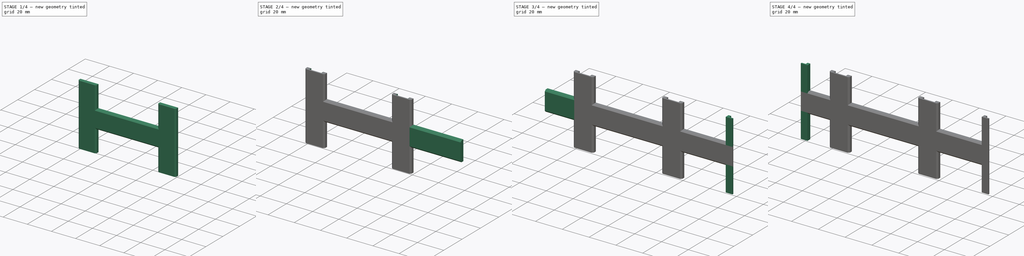
[diagram: build sequence overview — one tinted view per stage of 4, left to right]
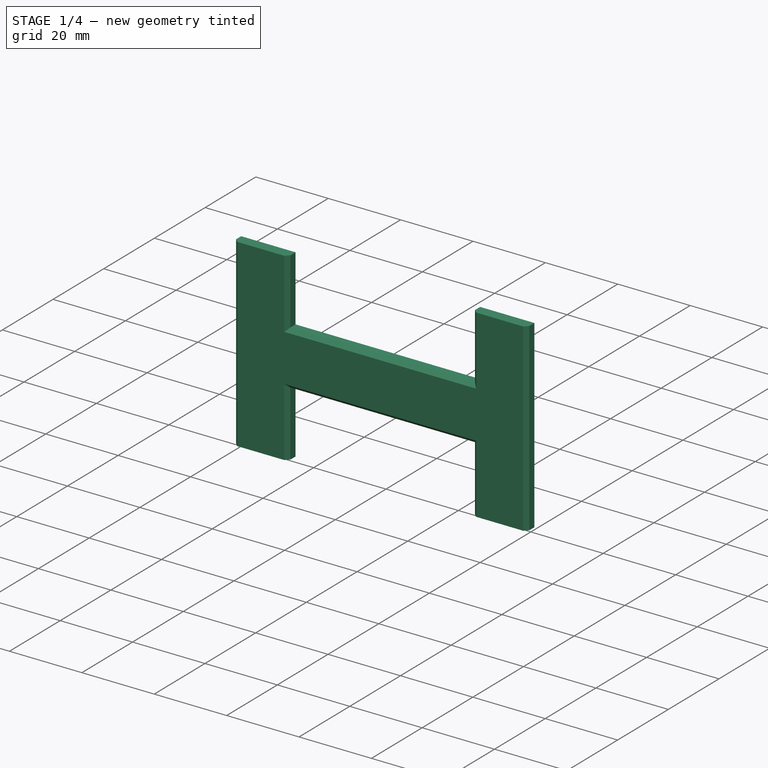
[diagram: stage 1 of 4 — iso view after this stage's code; geometry added in this stage tinted green]
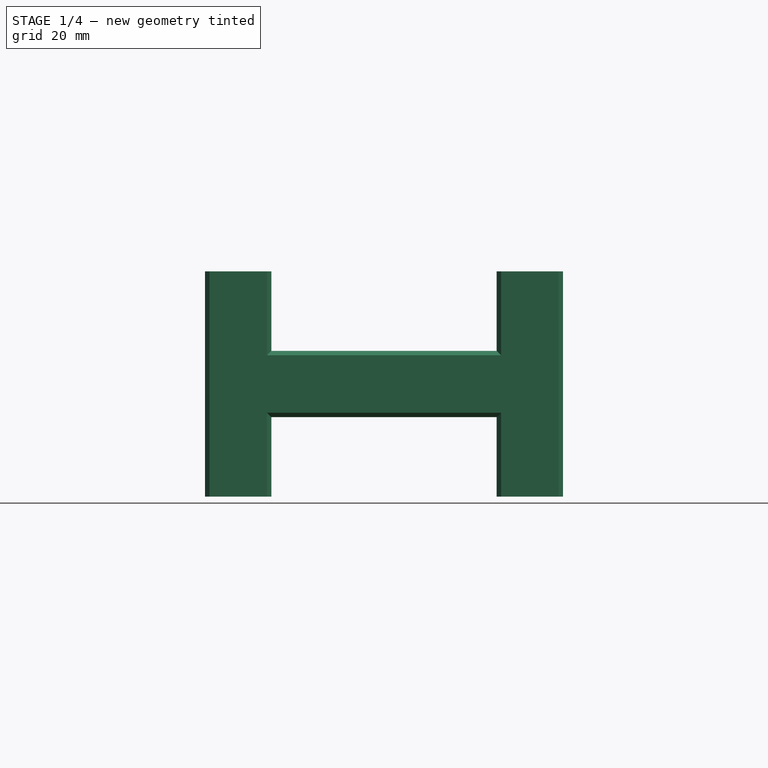
[diagram: stage 1 of 4 — front view after this stage's code; geometry added in this stage tinted green]
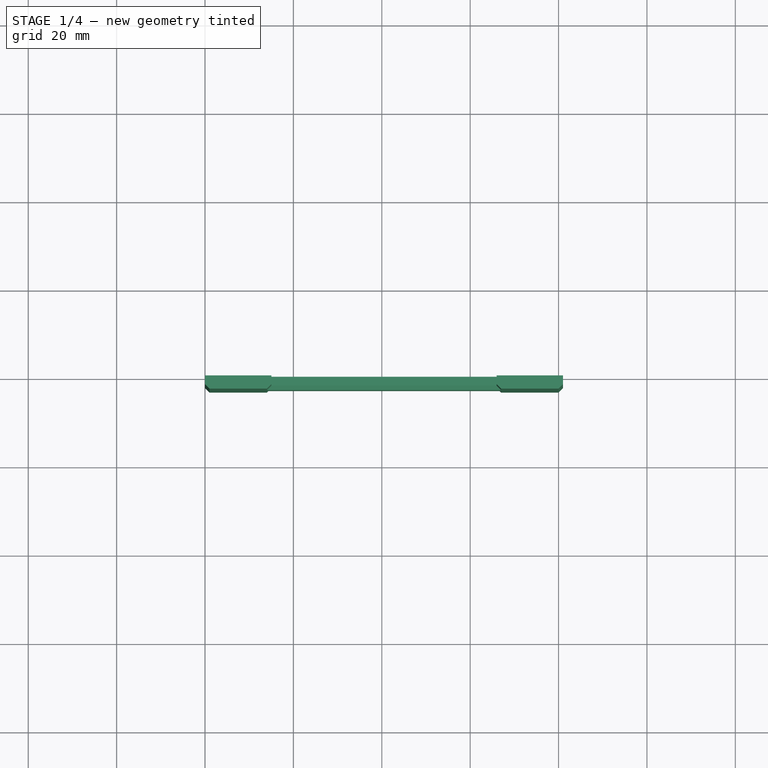
[diagram: stage 1 of 4 — top view after this stage's code; geometry added in this stage tinted green]
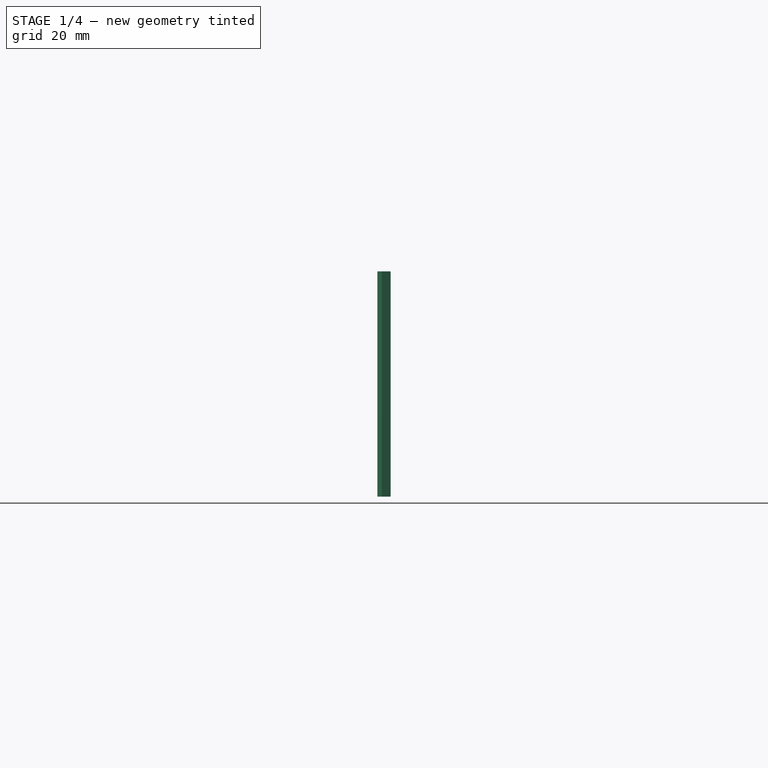
[diagram: stage 1 of 4 — right view after this stage's code; geometry added in this stage tinted green]
FCSTD DOCUMENT  (FreeCAD 0.20R29603 (Git))
Label: neopixelbracket_I
License: All rights reserved
LicenseURL: http://en.wikipedia.org/wiki/All_rights_reserved
objects: Sketcher::SketchObject×12, PartDesign::Pad×7, PartDesign::Pocket×5, PartDesign::Body×1
note: 37 computed .brp shape members not serialized (recipe doc carries the construction recipe); baked Part::Feature solids carry a one-line shape summary decoded from their .brp

FEATURE [Sketcher::SketchObject] Sketch
  FullyConstrained = true
  MapMode = 5
  Support = -> [XY_Plane]
  sketch-geometry (6):
    g0: LineSegment StartX=1 StartY=-3 StartZ=0 EndX=0 EndY=-2 EndZ=0
    g1: LineSegment StartX=0 StartY=-2 StartZ=0 EndX=0 EndY=0 EndZ=0
    g2: LineSegment StartX=0 StartY=0 StartZ=0 EndX=15 EndY=0 EndZ=0
    g3: LineSegment StartX=15 StartY=0 StartZ=0 EndX=15 EndY=-2 EndZ=0
    g4: LineSegment StartX=15 StartY=-2 StartZ=0 EndX=14 EndY=-3 EndZ=0
    g5: LineSegment StartX=14 StartY=-3 StartZ=0 EndX=1 EndY=-3 EndZ=0
  constraints (17):
    c: Coincident(g0,g1)
    c: Vertical(g1)
    c: Coincident(g1,g2)
    c: Horizontal(g2)
    c: Coincident(g2,g3)
    c: Vertical(g3)
    c: Coincident(g3,g4)
    c: Coincident(g4,g5)
    c: Coincident(g5,g0)
    c: Horizontal(g5)
    c: DistanceY(g0,g1) = 2
    c: DistanceY(g3,g3) = 2
    c: DistanceY(g4,g3) = 1
    c: DistanceX(g4,g3) = 1
    c: DistanceX(g0,g0) = 1
    c: DistanceX(g1,g2) = 15
    c: Coincident(g1,g-1)
FEATURE [PartDesign::Pad] Pad
  Direction = (0,0,1)
  Length = 51
  Length2 = 10
  Profile = -> Sketch
  ReferenceAxis = -> Sketch [N_Axis]
  Type = 0
FEATURE [Sketcher::SketchObject] Sketch001
  AttachmentOffset = pos=(0,0,-1) rot=(0,0,1;0rad)
  ExternalGeometry = -> [Pad]
  FullyConstrained = true
  MapMode = 5
  Placement = pos=(14,0,0) rot=(0.57735,0.57735,0.57735;2.0944rad)
  Support = -> [Pad]
  sketch-geometry (6):
    g0: LineSegment StartX=0 StartY=33 StartZ=0 EndX=0 EndY=18 EndZ=0
    g1: LineSegment StartX=0 StartY=18 StartZ=0 EndX=-2 EndY=18 EndZ=0
    g2: LineSegment StartX=-2 StartY=18 StartZ=0 EndX=-3 EndY=19 EndZ=0
    g3: LineSegment StartX=-3 StartY=19 StartZ=0 EndX=-3 EndY=32 EndZ=0
    g4: LineSegment StartX=-3 StartY=32 StartZ=0 EndX=-2 EndY=33 EndZ=0
    g5: LineSegment StartX=-2 StartY=33 StartZ=0 EndX=0 EndY=33 EndZ=0
  constraints (18):
    c: Vertical(g0)
    c: Coincident(g0,g1)
    c: Coincident(g1,g2)
    c: Coincident(g2,g3)
    c: Vertical(g3)
    c: Coincident(g3,g4)
    c: Coincident(g4,g5)
    c: Coincident(g5,g0)
    c: Horizontal(g5)
    c: Horizontal(g1)
    c: DistanceX(g3,g4) = 1
    c: DistanceY(g3,g4) = 1
    c: DistanceX(g4,g0) = 2
    c: DistanceY(g0,g0) = 15
    c: DistanceY(g1,g2) = 1
    c: DistanceX(g1,g0) = 2
    c: DistanceX(g-3,g0) = 0
    c: DistanceY(g0,g-3) = 18
FEATURE [PartDesign::Pad] Pad001
  BaseFeature = -> Pad
  Direction = (1,0,0)
  Length = 53
  Length2 = 10
  Profile = -> Sketch001
  ReferenceAxis = -> Sketch001 [N_Axis]
  Type = 0
FEATURE [Sketcher::SketchObject] Sketch002
  AttachmentOffset = pos=(0,0,-33) rot=(0,0,1;0rad)
  ExternalGeometry = -> [Pad001]
  FullyConstrained = true
  MapMode = 5
  Support = -> [Pad001]
  sketch-geometry (6):
    g0: LineSegment StartX=66 StartY=0 StartZ=0 EndX=81 EndY=0 EndZ=0
    g1: LineSegment StartX=81 StartY=0 StartZ=0 EndX=81 EndY=-2 EndZ=0
    g2: LineSegment StartX=81 StartY=-2 StartZ=0 EndX=80 EndY=-3 EndZ=0
    g3: LineSegment StartX=80 StartY=-3 StartZ=0 EndX=67 EndY=-3 EndZ=0
    g4: LineSegment StartX=67 StartY=-3 StartZ=0 EndX=66 EndY=-2 EndZ=0
    g5: LineSegment StartX=66 StartY=-2 StartZ=0 EndX=66 EndY=0 EndZ=0
  constraints (18):
    c: Horizontal(g0)
    c: Coincident(g0,g1)
    c: Vertical(g1)
    c: Coincident(g1,g2)
    c: Coincident(g2,g3)
    c: Horizontal(g3)
    c: Coincident(g3,g4)
    c: Coincident(g5,g4)
    c: Coincident(g5,g0)
    c: Vertical(g5)
    c: DistanceY(g4,g0) = 2
    c: DistanceY(g3,g4) = 1
    c: DistanceX(g4,g3) = 1
    c: DistanceY(g1,g0) = 2
    c: DistanceX(g2,g1) = 1
    c: DistanceX(g0,g0) = 15
    c: DistanceY(g-3,g0) = 0
    c: DistanceX(g0,g-3) = 1
FEATURE [PartDesign::Pad] Pad002
  BaseFeature = -> Pad001
  Direction = (0,0,1)
  Length = 51
  Length2 = 10
  Profile = -> Sketch002
  ReferenceAxis = -> Sketch002 [N_Axis]
  Type = 0
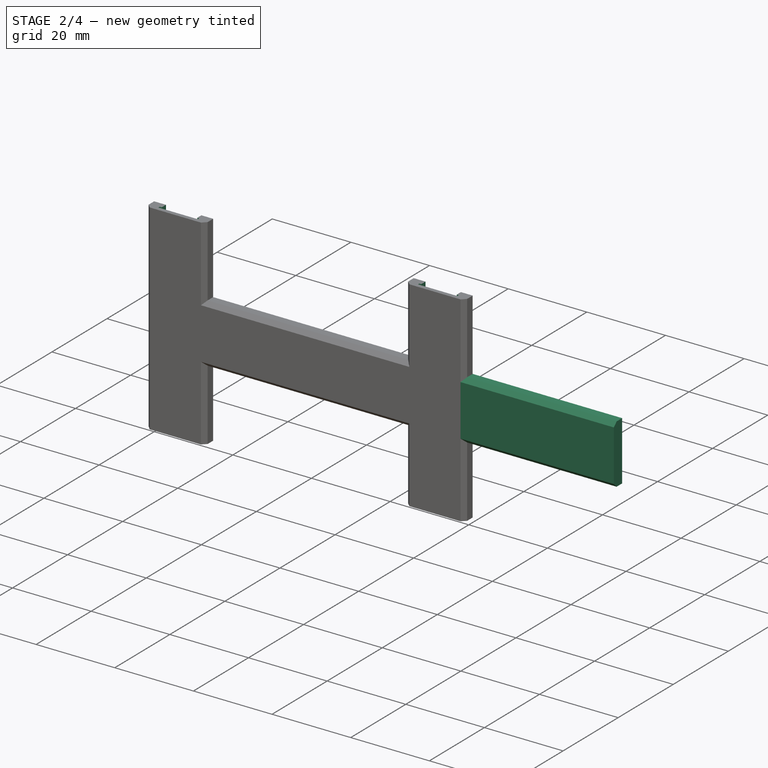
[diagram: stage 2 of 4 — iso view after this stage's code; geometry added in this stage tinted green]
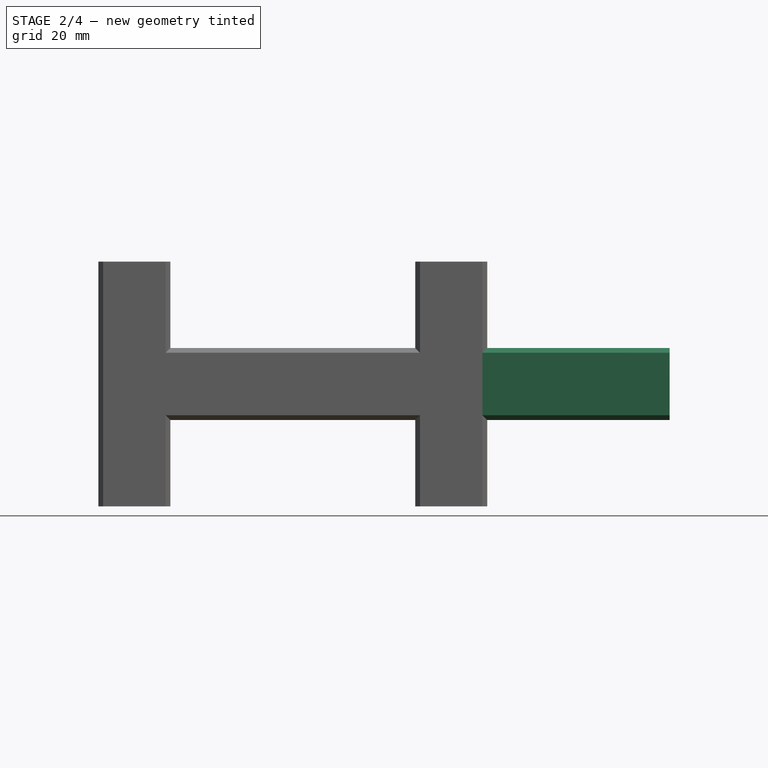
[diagram: stage 2 of 4 — front view after this stage's code; geometry added in this stage tinted green]
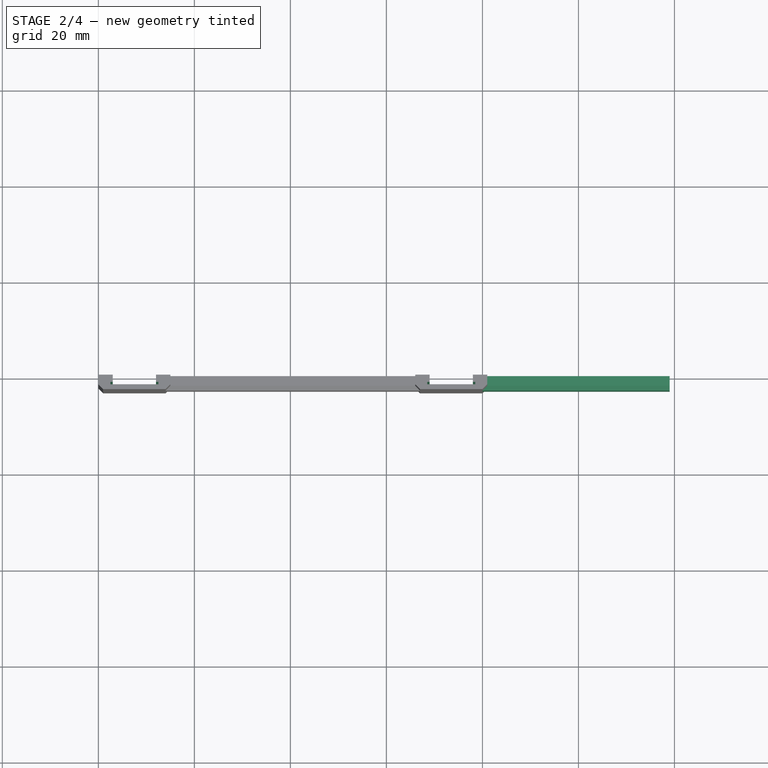
[diagram: stage 2 of 4 — top view after this stage's code; geometry added in this stage tinted green]
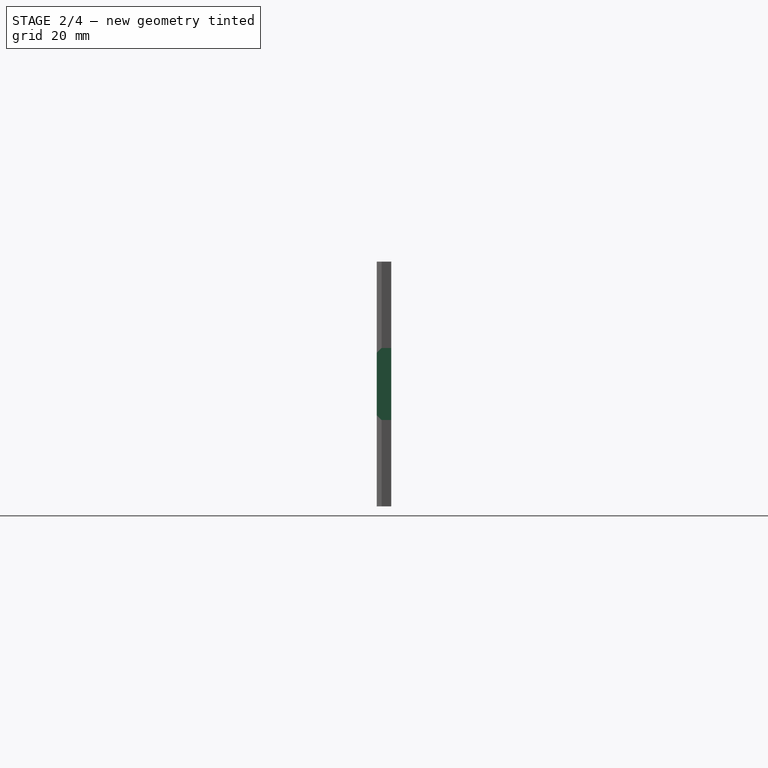
[diagram: stage 2 of 4 — right view after this stage's code; geometry added in this stage tinted green]
FEATURE [Sketcher::SketchObject] Sketch003
  FullyConstrained = true
  MapMode = 5
  Placement = pos=(0,0,51) rot=(0,0,1;0rad)
  Support = -> [Pad002]
  sketch-geometry (8):
    g0: LineSegment StartX=3 StartY=0 StartZ=0 EndX=3 EndY=-1.5 EndZ=0
    g1: LineSegment StartX=3 StartY=-1.5 StartZ=0 EndX=2.5 EndY=-1.5 EndZ=0
    g2: LineSegment StartX=2.5 StartY=-1.5 StartZ=0 EndX=2.5 EndY=-2 EndZ=0
    g3: LineSegment StartX=2.5 StartY=-2 StartZ=0 EndX=12.5 EndY=-2 EndZ=0
    g4: LineSegment StartX=12.5 StartY=-2 StartZ=0 EndX=12.5 EndY=-1.5 EndZ=0
    g5: LineSegment StartX=12.5 StartY=-1.5 StartZ=0 EndX=12 EndY=-1.5 EndZ=0
    g6: LineSegment StartX=12 StartY=-1.5 StartZ=0 EndX=12 EndY=0 EndZ=0
    g7: LineSegment StartX=12 StartY=0 StartZ=0 EndX=3 EndY=0 EndZ=0
  constraints (24):
    c: Vertical(g0)
    c: Coincident(g0,g1)
    c: Horizontal(g1)
    c: Coincident(g1,g2)
    c: Coincident(g2,g3)
    c: Horizontal(g3)
    c: Coincident(g3,g4)
    c: Vertical(g4)
    c: Coincident(g4,g5)
    c: Coincident(g5,g6)
    c: Coincident(g6,g7)
    c: Coincident(g7,g0)
    c: Horizontal(g7)
    c: Horizontal(g5)
    c: Vertical(g2)
    c: DistanceX(g1,g0) = 0.5
    c: DistanceY(g2,g2) = 0.5
    c: Vertical(g6)
    c: DistanceX(g5,g5) = 0.5
    c: DistanceX(g3,g3) = 10
    c: DistanceY(g0,g0) = 1.5
    c: DistanceY(g4,g4) = 0.5
    c: DistanceY(g0,g-1) = 0
    c: DistanceX(g-1,g0) = 3
FEATURE [PartDesign::Pocket] Pocket
  BaseFeature = -> Pad002
  Direction = (0,0,-1)
  Length = 51
  Length2 = 5
  Profile = -> Sketch003
  ReferenceAxis = -> Sketch003 [N_Axis]
  Type = 0
FEATURE [Sketcher::SketchObject] Sketch004
  ExternalGeometry = -> [Pocket]
  FullyConstrained = true
  MapMode = 5
  Placement = pos=(0,0,51) rot=(0,0,1;0rad)
  Support = -> [Pocket]
  sketch-geometry (8):
    g0: LineSegment StartX=78 StartY=0 StartZ=0 EndX=69 EndY=0 EndZ=0
    g1: LineSegment StartX=69 StartY=0 StartZ=0 EndX=69 EndY=-1.5 EndZ=0
    g2: LineSegment StartX=69 StartY=-1.5 StartZ=0 EndX=68.5 EndY=-1.5 EndZ=0
    g3: LineSegment StartX=68.5 StartY=-1.5 StartZ=0 EndX=68.5 EndY=-2 EndZ=0
    g4: LineSegment StartX=68.5 StartY=-2 StartZ=0 EndX=78.5 EndY=-2 EndZ=0
    g5: LineSegment StartX=78.5 StartY=-2 StartZ=0 EndX=78.5 EndY=-1.5 EndZ=0
    g6: LineSegment StartX=78.5 StartY=-1.5 StartZ=0 EndX=78 EndY=-1.5 EndZ=0
    g7: LineSegment StartX=78 StartY=-1.5 StartZ=0 EndX=78 EndY=0 EndZ=0
  constraints (24):
    c: Horizontal(g0)
    c: Coincident(g0,g1)
    c: Coincident(g1,g2)
    c: Horizontal(g2)
    c: Coincident(g2,g3)
    c: Coincident(g3,g4)
    c: Horizontal(g4)
    c: Coincident(g4,g5)
    c: Coincident(g5,g6)
    c: Coincident(g6,g7)
    c: Coincident(g7,g0)
    c: Vertical(g7)
    c: Vertical(g1)
    c: Horizontal(g6)
    c: Vertical(g5)
    c: Vertical(g3)
    c: DistanceX(g4,g4) = 10
    c: DistanceX(g2,g2) = 0.5
    c: DistanceX(g6,g6) = 0.5
    c: DistanceY(g3,g3) = 0.5
    c: DistanceY(g1,g1) = 1.5
    c: DistanceY(g7,g7) = 1.5
    c: DistanceY(g-3,g0) = 0
    c: DistanceX(g0,g-3) = 3
FEATURE [PartDesign::Pocket] Pocket001
  BaseFeature = -> Pocket
  Direction = (0,0,-1)
  Length = 51
  Length2 = 5
  Profile = -> Sketch004
  ReferenceAxis = -> Sketch004 [N_Axis]
  Type = 0
FEATURE [Sketcher::SketchObject] Sketch006
  AttachmentOffset = pos=(0,0,-1) rot=(0,0,1;0rad)
  FullyConstrained = true
  MapMode = 5
  Placement = pos=(80,0,0) rot=(0.57735,0.57735,0.57735;2.0944rad)
  sketch-geometry (6):
    g0: LineSegment StartX=0 StartY=33 StartZ=0 EndX=-2 EndY=33 EndZ=0
    g1: LineSegment StartX=-2 StartY=33 StartZ=0 EndX=-3 EndY=32 EndZ=0
    g2: LineSegment StartX=-3 StartY=32 StartZ=0 EndX=-3 EndY=19 EndZ=0
    g3: LineSegment StartX=-3 StartY=19 StartZ=0 EndX=-2 EndY=18 EndZ=0
    g4: LineSegment StartX=-2 StartY=18 StartZ=0 EndX=0 EndY=18 EndZ=0
    g5: LineSegment StartX=0 StartY=18 StartZ=0 EndX=0 EndY=33 EndZ=0
  constraints (18):
    c: Horizontal(g0)
    c: Coincident(g0,g1)
    c: Coincident(g1,g2)
    c: Vertical(g2)
    c: Coincident(g2,g3)
    c: Coincident(g3,g4)
    c: Horizontal(g4)
    c: Coincident(g4,g5)
    c: Coincident(g5,g0)
    c: Vertical(g5)
    c: DistanceY(g5,g5) = 15
    c: DistanceX(g0,g0) = 2
    c: DistanceX(g1,g0) = 1
    c: DistanceY(g1,g0) = 1
    c: DistanceY(g3,g2) = 1
    c: DistanceX(g4,g4) = 2
    c: DistanceX(g4,g-1) = 0
    c: DistanceY(g-1,g4) = 18
FEATURE [PartDesign::Pad] Pad003
  BaseFeature = -> Pocket001
  Direction = (1,0,0)
  Length = 39
  Length2 = 10
  Profile = -> Sketch006
  ReferenceAxis = -> Sketch006 [N_Axis]
  Type = 0
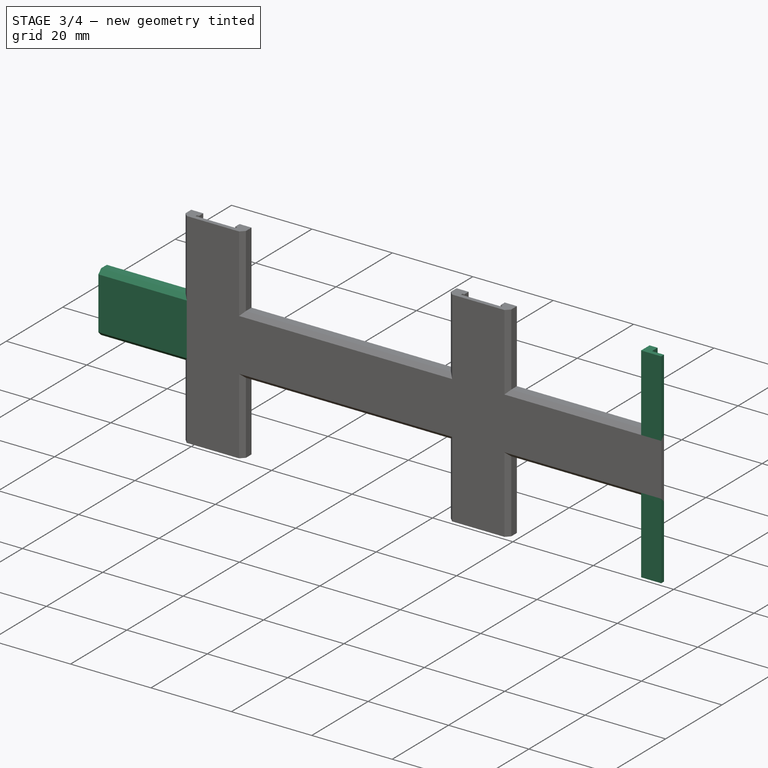
[diagram: stage 3 of 4 — iso view after this stage's code; geometry added in this stage tinted green]
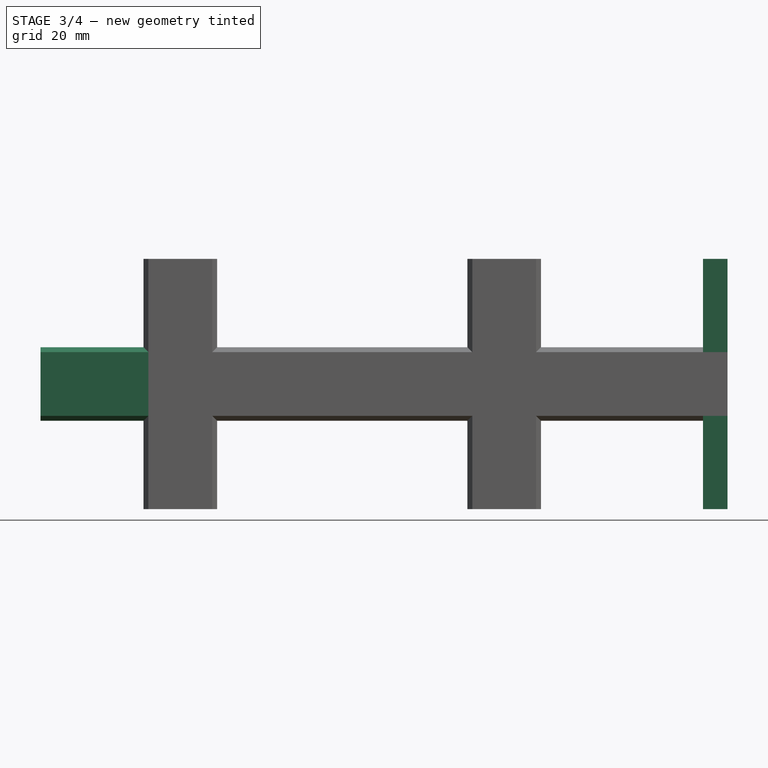
[diagram: stage 3 of 4 — front view after this stage's code; geometry added in this stage tinted green]
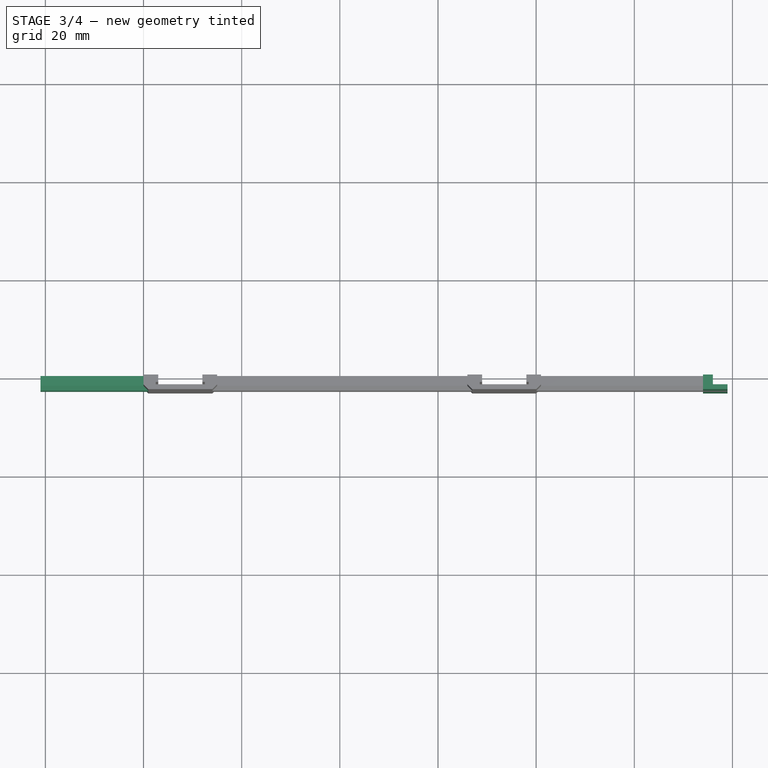
[diagram: stage 3 of 4 — top view after this stage's code; geometry added in this stage tinted green]
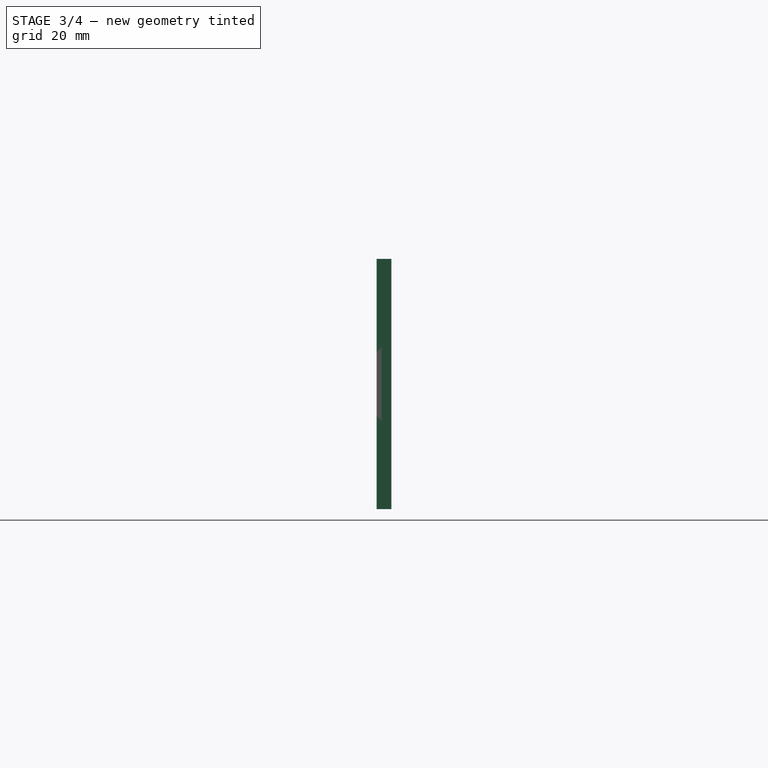
[diagram: stage 3 of 4 — right view after this stage's code; geometry added in this stage tinted green]
FEATURE [Sketcher::SketchObject] Sketch007
  AttachmentOffset = pos=(0,0,-1) rot=(0,0,1;0rad)
  FullyConstrained = true
  MapMode = 5
  Placement = pos=(1,0,0) rot=(0.57735,-0.57735,-0.57735;2.0944rad)
  Support = -> [Pad003]
  sketch-geometry (6):
    g0: LineSegment StartX=0 StartY=33 StartZ=0 EndX=2 EndY=33 EndZ=0
    g1: LineSegment StartX=2 StartY=33 StartZ=0 EndX=3 EndY=32 EndZ=0
    g2: LineSegment StartX=3 StartY=32 StartZ=0 EndX=3 EndY=19 EndZ=0
    g3: LineSegment StartX=3 StartY=19 StartZ=0 EndX=2 EndY=18 EndZ=0
    g4: LineSegment StartX=2 StartY=18 StartZ=0 EndX=0 EndY=18 EndZ=0
    g5: LineSegment StartX=0 StartY=18 StartZ=0 EndX=0 EndY=33 EndZ=0
  constraints (18):
    c: Horizontal(g0)
    c: Coincident(g0,g1)
    c: Coincident(g1,g2)
    c: Vertical(g2)
    c: Coincident(g2,g3)
    c: Coincident(g3,g4)
    c: Horizontal(g4)
    c: Coincident(g4,g5)
    c: Coincident(g5,g0)
    c: Vertical(g5)
    c: DistanceY(g5,g5) = 15
    c: DistanceX(g0,g0) = 2
    c: DistanceX(g4,g4) = 2
    c: DistanceX(g3,g2) = 1
    c: DistanceY(g1,g0) = 1
    c: DistanceY(g3,g2) = 1
    c: DistanceX(g4,g-1) = 0
    c: DistanceY(g-1,g4) = 18
FEATURE [PartDesign::Pad] Pad004
  BaseFeature = -> Pad003
  Direction = (-1,0,0)
  Length = 22
  Length2 = 10
  Profile = -> Sketch007
  ReferenceAxis = -> Sketch007 [N_Axis]
  Type = 0
FEATURE [Sketcher::SketchObject] Sketch008
  ExternalGeometry = -> [Pad004]
  FullyConstrained = true
  MapMode = 5
  Placement = pos=(119,0,0) rot=(0.57735,0.57735,0.57735;2.0944rad)
  Support = -> [Pad004]
  sketch-geometry (8):
    g0: LineSegment StartX=0 StartY=30 StartZ=0 EndX=-1.5 EndY=30 EndZ=0
    g1: LineSegment StartX=-1.5 StartY=30 StartZ=0 EndX=-1.5 EndY=30.5 EndZ=0
    g2: LineSegment StartX=-1.5 StartY=30.5 StartZ=0 EndX=-2 EndY=30.5 EndZ=0
    g3: LineSegment StartX=-2 StartY=30.5 StartZ=0 EndX=-2 EndY=20.5 EndZ=0
    g4: LineSegment StartX=-2 StartY=20.5 StartZ=0 EndX=-1.5 EndY=20.5 EndZ=0
    g5: LineSegment StartX=-1.5 StartY=20.5 StartZ=0 EndX=-1.5 EndY=21 EndZ=0
    g6: LineSegment StartX=-1.5 StartY=21 StartZ=0 EndX=0 EndY=21 EndZ=0
    g7: LineSegment StartX=0 StartY=21 StartZ=0 EndX=0 EndY=30 EndZ=0
  constraints (24):
    c: Horizontal(g0)
    c: Coincident(g0,g1)
    c: Coincident(g1,g2)
    c: Horizontal(g2)
    c: Coincident(g2,g3)
    c: Vertical(g3)
    c: Coincident(g3,g4)
    c: Horizontal(g4)
    c: Coincident(g4,g5)
    c: Coincident(g5,g6)
    c: Horizontal(g6)
    c: Coincident(g6,g7)
    c: Coincident(g7,g0)
    c: Vertical(g7)
    c: Vertical(g5)
    c: Vertical(g1)
    c: DistanceY(g3,g3) = 10
    c: DistanceY(g1,g1) = 0.5
    c: DistanceY(g5,g5) = 0.5
    c: DistanceX(g0,g0) = 1.5
    c: DistanceX(g2,g2) = 0.5
    c: DistanceX(g6,g6) = 1.5
    c: DistanceX(g-3,g0) = 0
    c: DistanceY(g2,g-3) = 2.5
FEATURE [Sketcher::SketchObject] Sketch009
  AttachmentOffset = pos=(0,0,-33) rot=(0,0,1;0rad)
  ExternalGeometry = -> [Pad004]
  FullyConstrained = true
  MapMode = 5
  Placement = pos=(0,0,51) rot=(1,0,0;3.14159rad)
  Support = -> [Pad004]
  sketch-geometry (4):
    g0: LineSegment StartX=114 StartY=3 StartZ=0 EndX=119 EndY=3 EndZ=0
    g1: LineSegment StartX=119 StartY=3 StartZ=0 EndX=119 EndY=0 EndZ=0
    g2: LineSegment StartX=119 StartY=0 StartZ=0 EndX=114 EndY=0 EndZ=0
    g3: LineSegment StartX=114 StartY=0 StartZ=0 EndX=114 EndY=3 EndZ=0
  constraints (11):
    c: Coincident(g0,g1)
    c: Coincident(g1,g2)
    c: Coincident(g2,g3)
    c: Coincident(g3,g0)
    c: Horizontal(g0)
    c: Horizontal(g2)
    c: Vertical(g1)
    c: Vertical(g3)
    c: DistanceX(g0,g0) = 5
    c: DistanceY(g3,g3) = 3
    c: Coincident(g0,g-3)
FEATURE [PartDesign::Pad] Pad005
  BaseFeature = -> Pad004
  Direction = (0,0,-1)
  Length = 51
  Length2 = 10
  Profile = -> Sketch009
  ReferenceAxis = -> Sketch009 [N_Axis]
  Type = 0
FEATURE [Sketcher::SketchObject] Sketch010
  ExternalGeometry = -> [Pad005]
  FullyConstrained = true
  MapMode = 5
  Placement = pos=(0,0,0) rot=(1,0,0;3.14159rad)
  Support = -> [Pad005]
  sketch-geometry (4):
    g0: LineSegment StartX=116 StartY=2 StartZ=0 EndX=119 EndY=2 EndZ=0
    g1: LineSegment StartX=119 StartY=2 StartZ=0 EndX=119 EndY=0 EndZ=0
    g2: LineSegment StartX=119 StartY=0 StartZ=0 EndX=116 EndY=0 EndZ=0
    g3: LineSegment StartX=116 StartY=0 StartZ=0 EndX=116 EndY=2 EndZ=0
  constraints (11):
    c: Coincident(g0,g1)
    c: Coincident(g1,g2)
    c: Coincident(g2,g3)
    c: Coincident(g3,g0)
    c: Horizontal(g0)
    c: Horizontal(g2)
    c: Vertical(g1)
    c: Vertical(g3)
    c: DistanceY(g1,g1) = 2
    c: DistanceX(g0,g0) = 3
    c: Coincident(g1,g-3)
FEATURE [PartDesign::Pocket] Pocket002
  BaseFeature = -> Pad005
  Direction = (0,0,1)
  Length = 51
  Length2 = 5
  Profile = -> Sketch010
  ReferenceAxis = -> Sketch010 [N_Axis]
  Type = 0
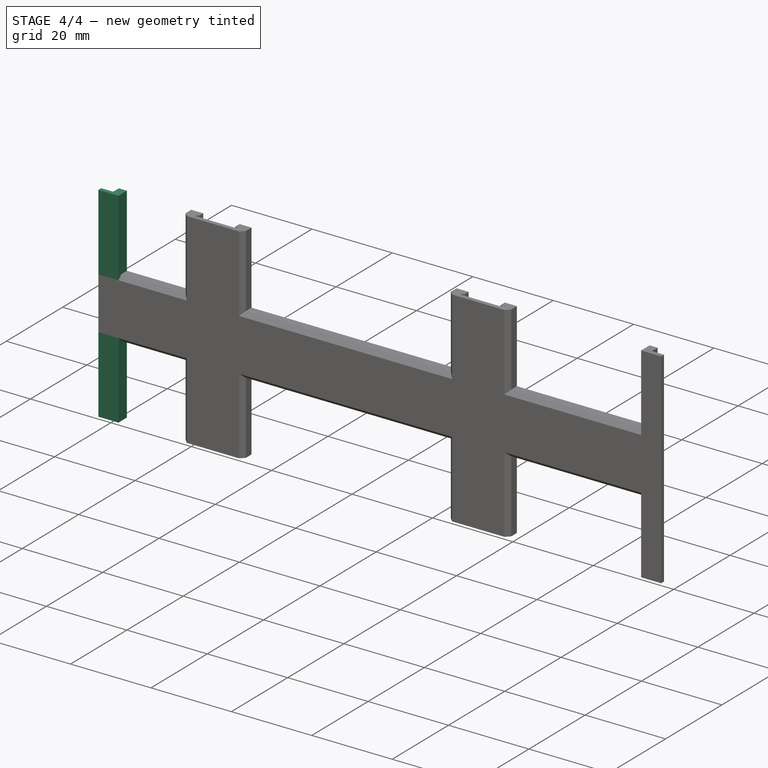
[diagram: stage 4 of 4 — iso view after this stage's code; geometry added in this stage tinted green]
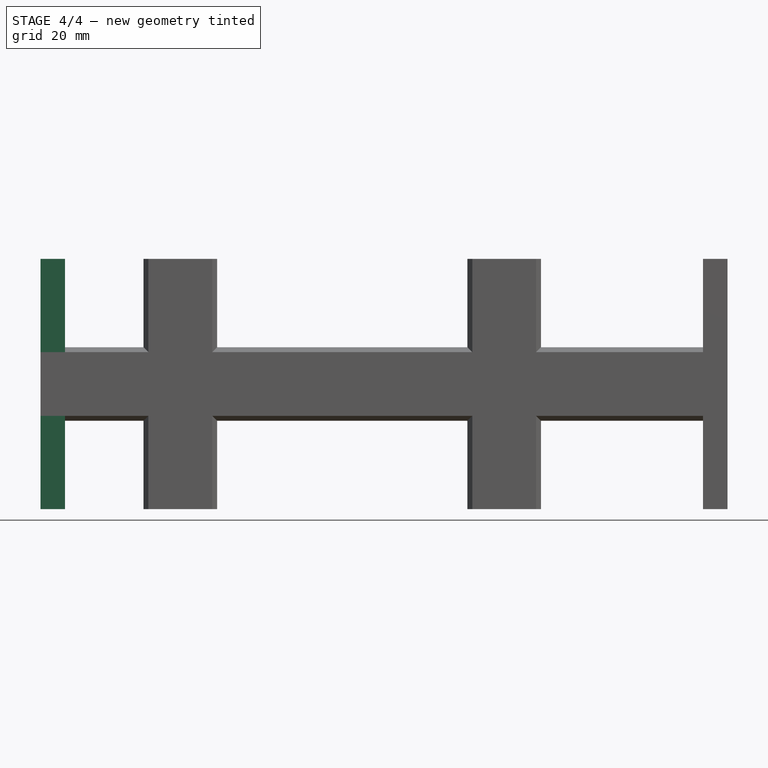
[diagram: stage 4 of 4 — front view after this stage's code; geometry added in this stage tinted green]
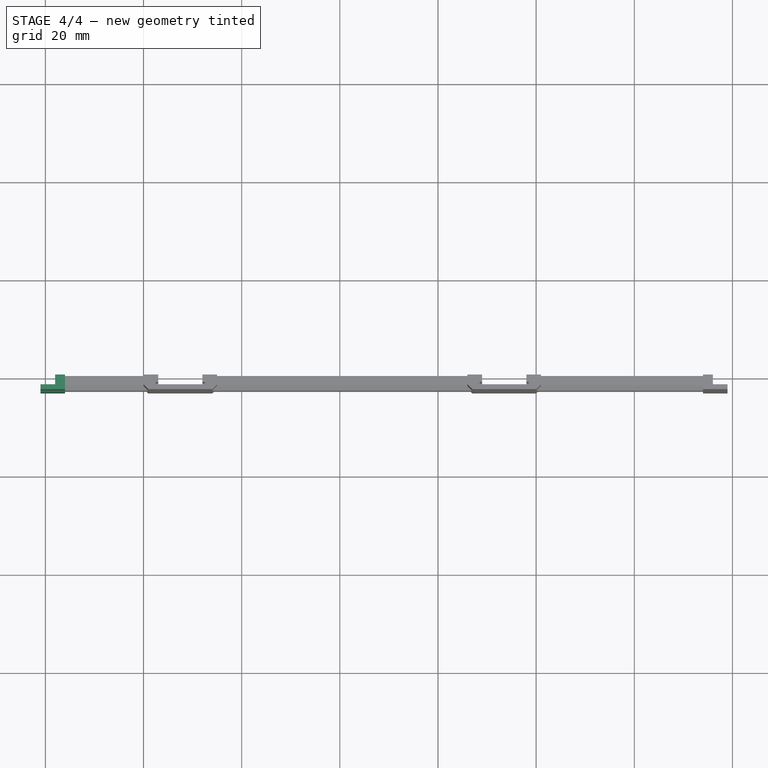
[diagram: stage 4 of 4 — top view after this stage's code; geometry added in this stage tinted green]
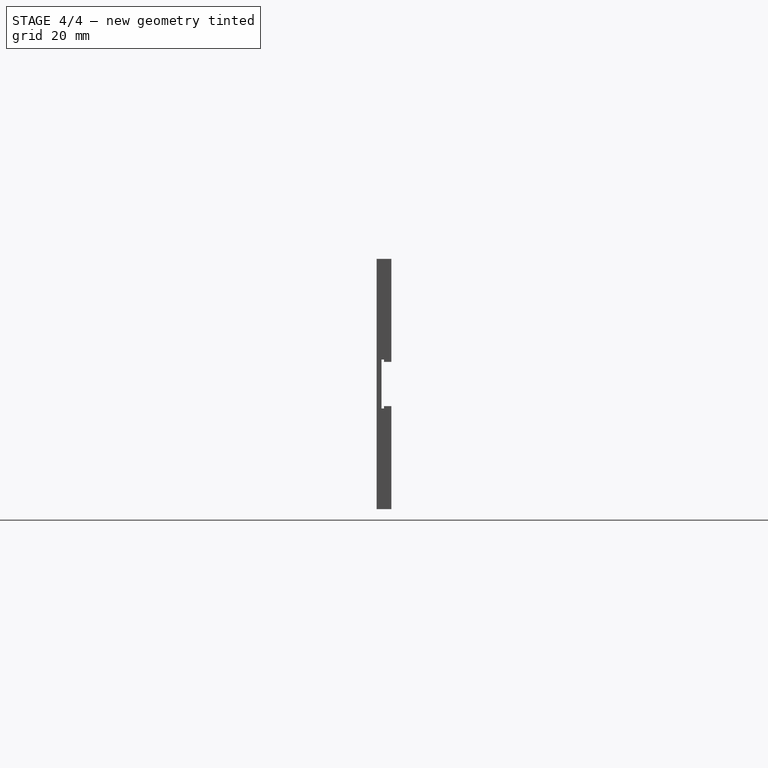
[diagram: stage 4 of 4 — right view after this stage's code; geometry added in this stage tinted green]
FEATURE [Sketcher::SketchObject] Sketch011
  AttachmentOffset = pos=(0,0,-33) rot=(0,0,1;0rad)
  ExternalGeometry = -> [Pocket002]
  FullyConstrained = true
  MapMode = 5
  Placement = pos=(0,0,51) rot=(1,0,0;3.14159rad)
  Support = -> [Pocket002]
  sketch-geometry (4):
    g0: LineSegment StartX=-21 StartY=3 StartZ=0 EndX=-16 EndY=3 EndZ=0
    g1: LineSegment StartX=-16 StartY=3 StartZ=0 EndX=-16 EndY=0 EndZ=0
    g2: LineSegment StartX=-16 StartY=0 StartZ=0 EndX=-21 EndY=0 EndZ=0
    g3: LineSegment StartX=-21 StartY=0 StartZ=0 EndX=-21 EndY=3 EndZ=0
  constraints (11):
    c: Coincident(g0,g1)
    c: Coincident(g1,g2)
    c: Coincident(g2,g3)
    c: Coincident(g3,g0)
    c: Horizontal(g0)
    c: Horizontal(g2)
    c: Vertical(g1)
    c: Vertical(g3)
    c: DistanceY(g1,g1) = 3
    c: DistanceX(g2,g2) = 5
    c: Coincident(g2,g-3)
FEATURE [PartDesign::Pad] Pad006
  BaseFeature = -> Pocket002
  Direction = (0,0,-1)
  Length = 51
  Length2 = 10
  Profile = -> Sketch011
  ReferenceAxis = -> Sketch011 [N_Axis]
  Type = 0
FEATURE [Sketcher::SketchObject] Sketch012
  ExternalGeometry = -> [Pad006]
  FullyConstrained = true
  MapMode = 5
  Placement = pos=(0,0,0) rot=(1,0,0;3.14159rad)
  Support = -> [Pad006]
  sketch-geometry (4):
    g0: LineSegment StartX=-21 StartY=2 StartZ=0 EndX=-18 EndY=2 EndZ=0
    g1: LineSegment StartX=-18 StartY=2 StartZ=0 EndX=-18 EndY=0 EndZ=0
    g2: LineSegment StartX=-18 StartY=0 StartZ=0 EndX=-21 EndY=0 EndZ=0
    g3: LineSegment StartX=-21 StartY=0 StartZ=0 EndX=-21 EndY=2 EndZ=0
  constraints (11):
    c: Coincident(g0,g1)
    c: Coincident(g1,g2)
    c: Coincident(g2,g3)
    c: Coincident(g3,g0)
    c: Horizontal(g0)
    c: Horizontal(g2)
    c: Vertical(g1)
    c: Vertical(g3)
    c: DistanceY(g1,g1) = 2
    c: DistanceX(g0,g0) = 3
    c: Coincident(g2,g-3)
FEATURE [PartDesign::Pocket] Pocket003
  BaseFeature = -> Pad006
  Direction = (0,0,1)
  Length = 51
  Length2 = 5
  Profile = -> Sketch012
  ReferenceAxis = -> Sketch012 [N_Axis]
  Type = 0
FEATURE [PartDesign::Pocket] Pocket004
  BaseFeature = -> Pocket003
  Direction = (-1,0,0)
  Length = 140
  Length2 = 5
  Profile = -> Sketch008
  ReferenceAxis = -> Sketch008 [N_Axis]
  Type = 0
FEATURE [PartDesign::Body] Body
  Group = -> [Sketch,Pad,Sketch001,Pad001,Sketch002,Pad002,Sketch003,Pocket,Sketch004,Pocket001,Sketch006,Pad003,Sketch007,Pad004,Sketch008,Sketch009,Pad005,Sketch010,Pocket002,Sketch011,Pad006,Sketch012,Pocket003,Pocket004]
  Origin = -> Origin
  Tip = -> Pocket004
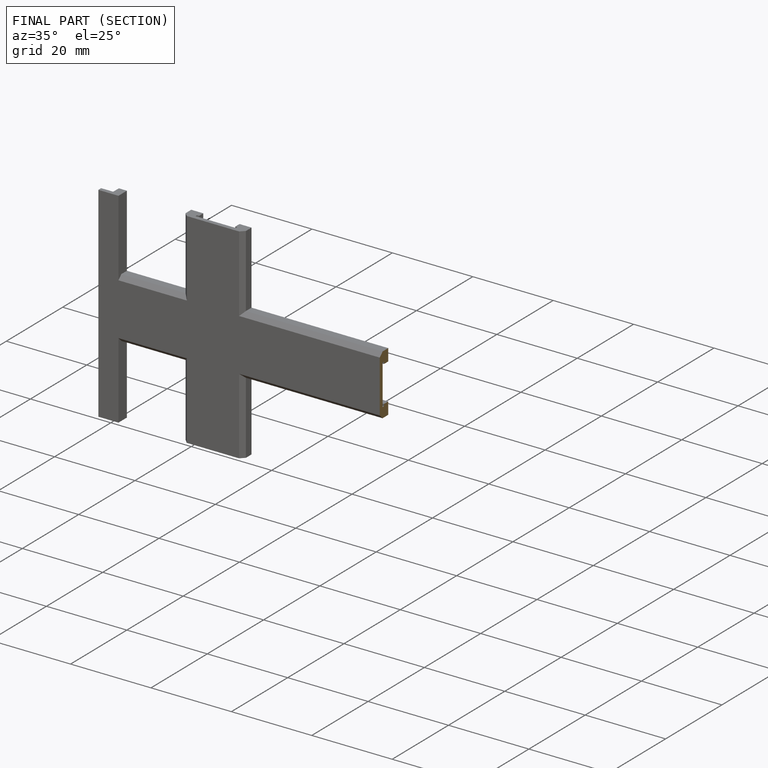
[diagram: finished part — half-section view (interior)]
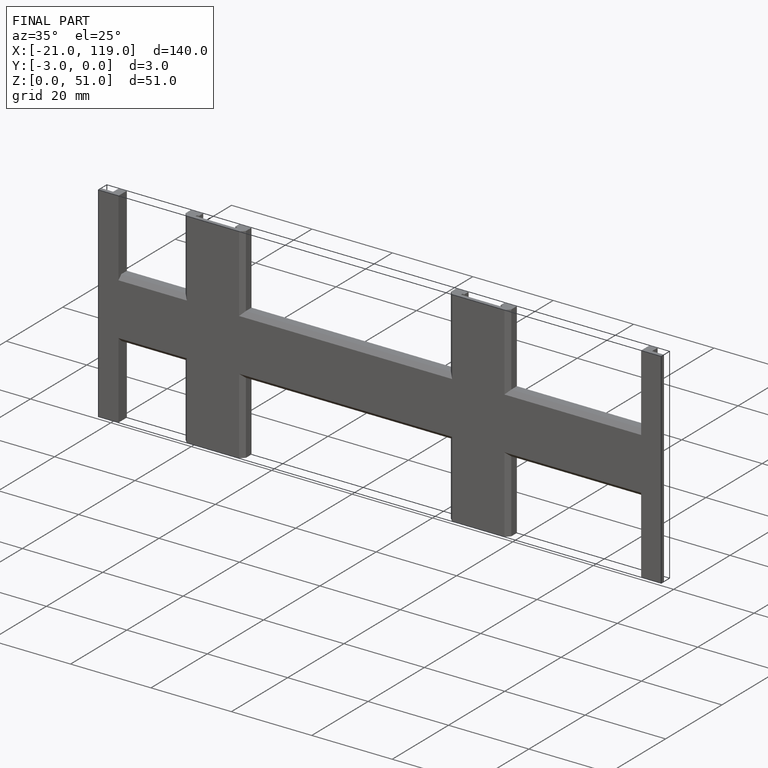
[diagram: finished part — iso view with bounding-box wireframe]
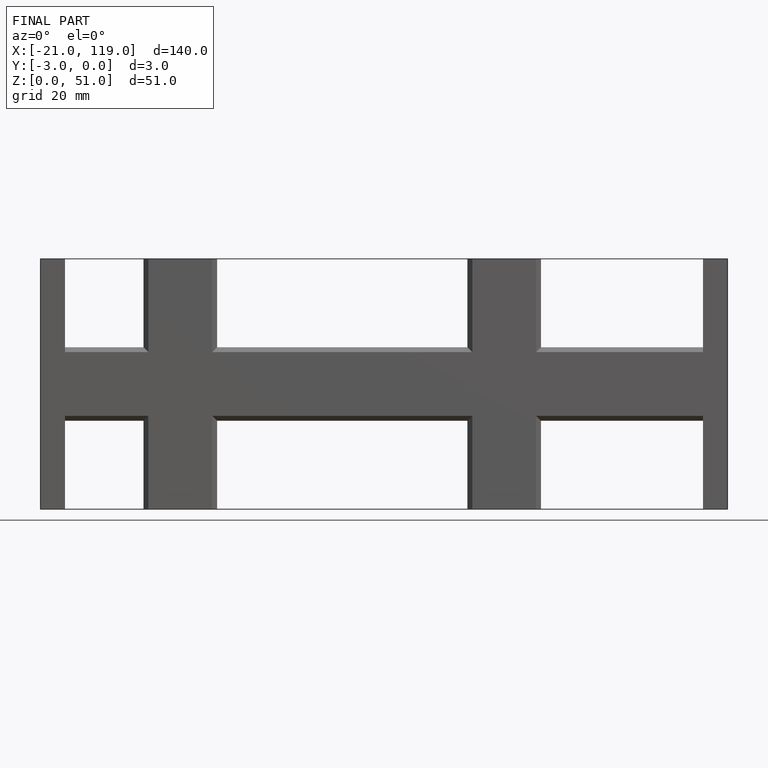
[diagram: finished part — front view with bounding-box wireframe]
